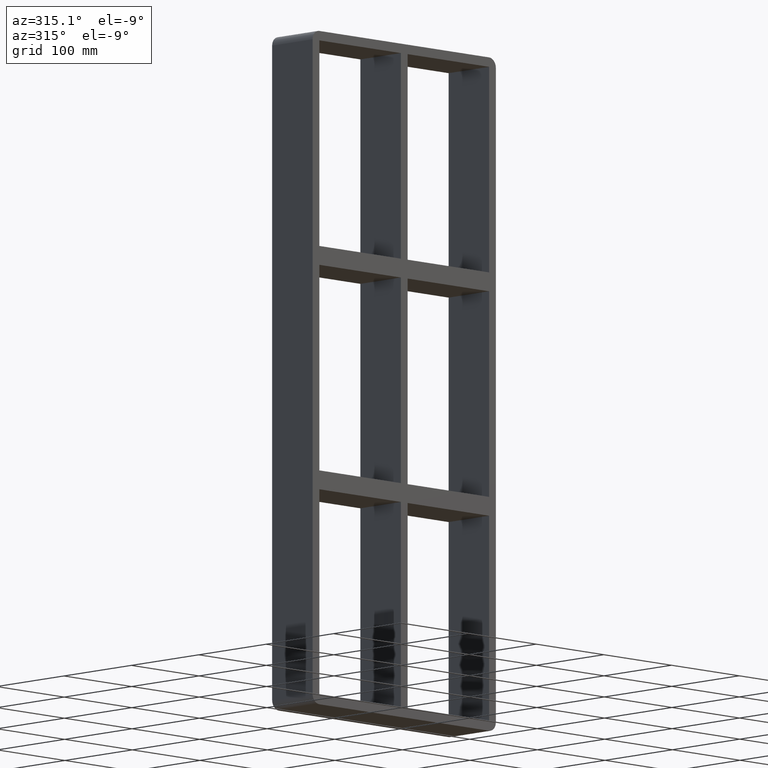
[diagram: clean part render]
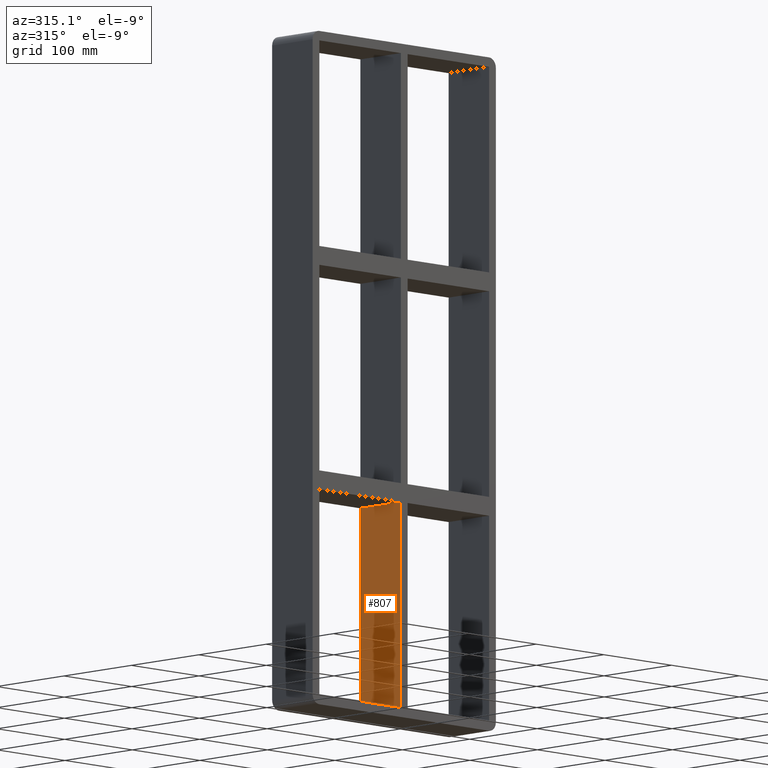
[diagram: same view with one face highlighted and labeled with its STEP entity id]
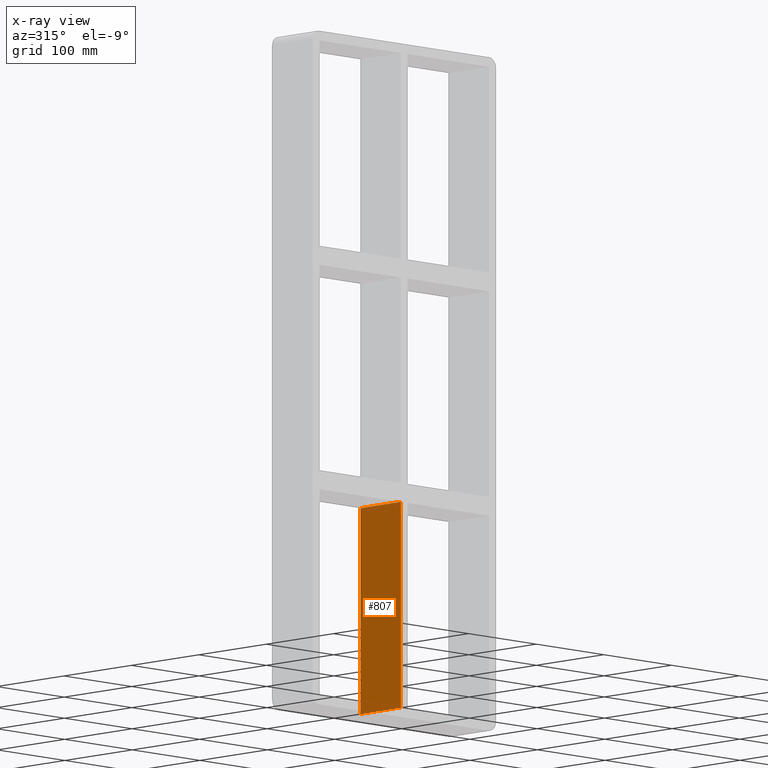
[diagram: x-ray of the same camera — body ghosted, the highlighted face saturated]
A machine part, auxiliary view. The second image highlights one B-rep face of the part: STEP entity #807.
The next image is the same camera in x-ray: the body ghosted, the highlighted face saturated — about 0% of this face is hidden behind the body in this view.
In plain terms, the highlighted planar face has unit normal (-1, 0, 0).
Its self-contained STEP definition (entity closure, byte-faithful):
#459=CARTESIAN_POINT('',(-5.000000000001297,-3.0,-129.00000000000941));
#460=VERTEX_POINT('',#459);
#461=CARTESIAN_POINT('',(-5.000000000001297,57.0,-129.00000000000941));
#462=VERTEX_POINT('',#461);
#463=CARTESIAN_POINT('',(-5.000000000001297,-3.0,-129.00000000000941));
#464=DIRECTION('',(0.0,1.0,0.0));
#465=VECTOR('',#464,60.0);
#466=LINE('',#463,#465);
#467=EDGE_CURVE('',#460,#462,#466,.T.);
#731=CARTESIAN_POINT('',(-5.000000000001261,57.0,-347.0));
#732=VERTEX_POINT('',#731);
#739=CARTESIAN_POINT('',(-5.000000000001261,57.0,-347.0));
#740=DIRECTION('',(0.0,0.0,1.0));
#741=VECTOR('',#740,217.99999999999059);
#742=LINE('',#739,#741);
#743=EDGE_CURVE('',#732,#462,#742,.T.);
#784=CARTESIAN_POINT('',(-5.000000000001261,-3.0,-347.0));
#785=DIRECTION('',(-1.0,0.0,0.0));
#786=DIRECTION('',(0.0,0.0,1.0));
#787=AXIS2_PLACEMENT_3D('',#784,#785,#786);
#788=PLANE('',#787);
#789=ORIENTED_EDGE('',*,*,#467,.T.);
#790=ORIENTED_EDGE('',*,*,#743,.F.);
#791=CARTESIAN_POINT('',(-5.000000000001261,-3.0,-347.0));
#792=VERTEX_POINT('',#791);
#793=CARTESIAN_POINT('',(-5.000000000001261,-3.0,-347.0));
#794=DIRECTION('',(0.0,1.0,0.0));
#795=VECTOR('',#794,60.000000000000007);
#796=LINE('',#793,#795);
#797=EDGE_CURVE('',#792,#732,#796,.T.);
#798=ORIENTED_EDGE('',*,*,#797,.F.);
#799=CARTESIAN_POINT('',(-5.000000000001261,-3.0,-347.0));
#800=DIRECTION('',(0.0,0.0,1.0));
#801=VECTOR('',#800,217.99999999999059);
#802=LINE('',#799,#801);
#803=EDGE_CURVE('',#792,#460,#802,.T.);
#804=ORIENTED_EDGE('',*,*,#803,.T.);
#805=EDGE_LOOP('',(#789,#790,#798,#804));
#806=FACE_OUTER_BOUND('',#805,.T.);
#807=ADVANCED_FACE('',(#806),#788,.T.);